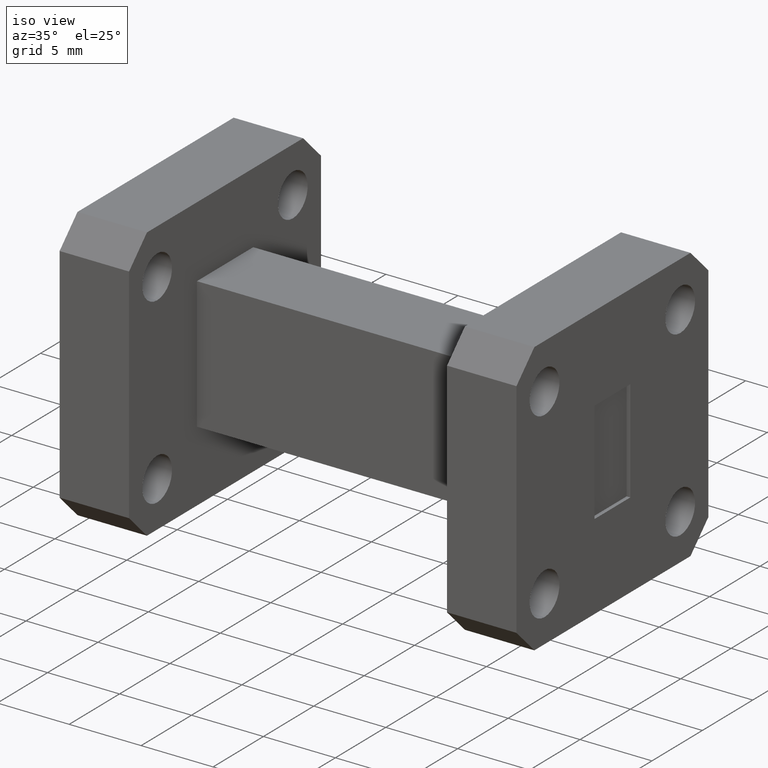
[diagram: clean part render]
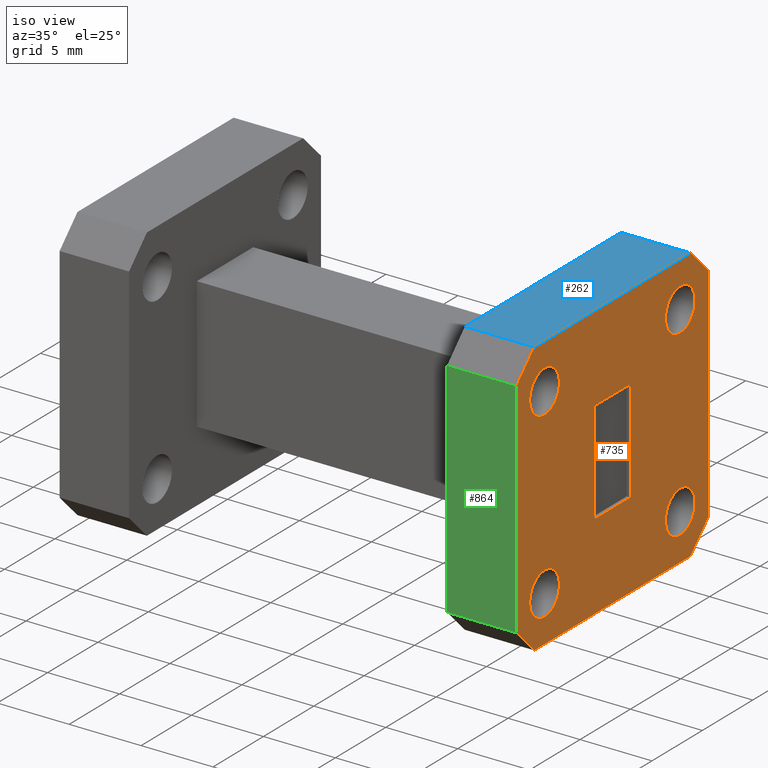
[diagram: same view with three faces highlighted in distinct colors, each labeled with its STEP entity id]
A machine part, iso view with three faces highlighted in distinct colors.
Their STEP definitions:

[orange] entity #735 — the highlighted planar face has unit normal (-1, 0, 0).
#16 = CARTESIAN_POINT ( 'NONE',  ( 1.250000000000000000, -0.3749999999999998890, -0.3049999999999999378 ) ) ;
#24 = CARTESIAN_POINT ( 'NONE',  ( 1.250000000000000000, 0.3750000000000001110, -0.3050000000000000488 ) ) ;
#28 = DIRECTION ( 'NONE',  ( 0.000000000000000000, 0.000000000000000000, 1.000000000000000000 ) ) ;
#44 = EDGE_CURVE ( 'NONE', #1564, #716, #1112, .T. ) ;
#50 = CARTESIAN_POINT ( 'NONE',  ( 1.250000000000000000, -0.3749999999999998890, -0.3049999999999999378 ) ) ;
#55 = EDGE_CURVE ( 'NONE', #565, #1173, #736, .T. ) ;
#57 = CARTESIAN_POINT ( 'NONE',  ( 1.250000000000000000, -0.3750000000000001110, 0.3050000000000001044 ) ) ;
#65 = DIRECTION ( 'NONE',  ( -1.000000000000000000, -0.000000000000000000, -0.000000000000000000 ) ) ;
#73 = DIRECTION ( 'NONE',  ( -0.000000000000000000, 1.219574997171546080E-16, -1.000000000000000000 ) ) ;
#80 = ORIENTED_EDGE ( 'NONE', *, *, #990, .T. ) ;
#101 = FACE_BOUND ( 'NONE', #893, .T. ) ;
#110 = VERTEX_POINT ( 'NONE', #288 ) ;
#119 = EDGE_CURVE ( 'NONE', #1186, #831, #1135, .T. ) ;
#121 = VERTEX_POINT ( 'NONE', #787 ) ;
#139 = EDGE_CURVE ( 'NONE', #1306, #502, #1485, .T. ) ;
#157 = VERTEX_POINT ( 'NONE', #416 ) ;
#160 = ORIENTED_EDGE ( 'NONE', *, *, #181, .T. ) ;
#169 = DIRECTION ( 'NONE',  ( -1.000000000000000000, -0.000000000000000000, -0.000000000000000000 ) ) ;
#174 = CARTESIAN_POINT ( 'NONE',  ( 1.250000000000000000, -0.3049999999999999378, -0.3750000000000000555 ) ) ;
#178 = DIRECTION ( 'NONE',  ( -0.000000000000000000, 0.7071067811865495711, 0.7071067811865454633 ) ) ;
#181 = EDGE_CURVE ( 'NONE', #900, #466, #250, .T. ) ;
#186 = VECTOR ( 'NONE', #919, 39.37007874015748143 ) ;
#187 = LINE ( 'NONE', #431, #1058 ) ;
#204 = CARTESIAN_POINT ( 'NONE',  ( 1.250000000000000000, -0.2649999999999999023, 0.3079999999999997740 ) ) ;
#230 = EDGE_LOOP ( 'NONE', ( #316, #359, #160, #450, #1420, #767, #884, #666 ) ) ;
#250 = LINE ( 'NONE', #16, #186 ) ;
#252 = ORIENTED_EDGE ( 'NONE', *, *, #808, .T. ) ;
#288 = CARTESIAN_POINT ( 'NONE',  ( 1.250000000000000000, 0.3049999999999997713, -0.3749999999999999445 ) ) ;
#298 = VECTOR ( 'NONE', #1661, 39.37007874015748143 ) ;
#302 = ORIENTED_EDGE ( 'NONE', *, *, #139, .T. ) ;
#305 = ORIENTED_EDGE ( 'NONE', *, *, #358, .T. ) ;
#316 = ORIENTED_EDGE ( 'NONE', *, *, #371, .T. ) ;
#358 = EDGE_CURVE ( 'NONE', #502, #1306, #1459, .T. ) ;
#359 = ORIENTED_EDGE ( 'NONE', *, *, #1079, .T. ) ;
#363 = CARTESIAN_POINT ( 'NONE',  ( 1.250000000000000000, 0.3049999999999998823, 0.3750000000000001110 ) ) ;
#371 = EDGE_CURVE ( 'NONE', #1317, #157, #421, .T. ) ;
#372 = EDGE_LOOP ( 'NONE', ( #784, #494, #1048, #1023 ) ) ;
#373 = LINE ( 'NONE', #616, #1606 ) ;
#416 = CARTESIAN_POINT ( 'NONE',  ( 1.250000000000000000, -0.3049999999999998268, 0.3750000000000000555 ) ) ;
#421 = LINE ( 'NONE', #542, #497 ) ;
#431 = CARTESIAN_POINT ( 'NONE',  ( 1.250000000000000000, -0.06999999999999996503, -0.1399999999999999856 ) ) ;
#441 = LINE ( 'NONE', #1460, #1569 ) ;
#450 = ORIENTED_EDGE ( 'NONE', *, *, #517, .T. ) ;
#454 = ORIENTED_EDGE ( 'NONE', *, *, #465, .T. ) ;
#464 = CARTESIAN_POINT ( 'NONE',  ( 1.250000000000000000, 0.3049999999999998823, 0.3750000000000001110 ) ) ;
#465 = EDGE_CURVE ( 'NONE', #1173, #565, #1646, .T. ) ;
#466 = VERTEX_POINT ( 'NONE', #50 ) ;
#468 = PLANE ( 'NONE',  #896 ) ;
#474 = CARTESIAN_POINT ( 'NONE',  ( 1.250000000000000000, 0.07000000000000000666, 0.1400000000000000411 ) ) ;
#494 = ORIENTED_EDGE ( 'NONE', *, *, #44, .F. ) ;
#497 = VECTOR ( 'NONE', #1015, 39.37007874015748143 ) ;
#500 = EDGE_CURVE ( 'NONE', #716, #635, #1589, .T. ) ;
#502 = VERTEX_POINT ( 'NONE', #948 ) ;
#517 = EDGE_CURVE ( 'NONE', #466, #1010, #441, .T. ) ;
#542 = CARTESIAN_POINT ( 'NONE',  ( 1.250000000000000000, -0.3049999999999998268, 0.3750000000000000555 ) ) ;
#565 = VERTEX_POINT ( 'NONE', #683 ) ;
#575 = CARTESIAN_POINT ( 'NONE',  ( 1.250000000000000000, 0.2650000000000002354, 0.2500000000000000000 ) ) ;
#578 = EDGE_CURVE ( 'NONE', #635, #1013, #187, .T. ) ;
#579 = VECTOR ( 'NONE', #932, 39.37007874015748143 ) ;
#581 = AXIS2_PLACEMENT_3D ( 'NONE', #1174, #758, #1262 ) ;
#608 = CARTESIAN_POINT ( 'NONE',  ( 1.250000000000000000, -0.06999999999999996503, -0.1399999999999999856 ) ) ;
#616 = CARTESIAN_POINT ( 'NONE',  ( 1.250000000000000000, 0.3049999999999997713, -0.3749999999999999445 ) ) ;
#635 = VERTEX_POINT ( 'NONE', #848 ) ;
#665 = CARTESIAN_POINT ( 'NONE',  ( 1.250000000000000000, 0.3750000000000001110, 0.3049999999999997713 ) ) ;
#666 = ORIENTED_EDGE ( 'NONE', *, *, #1480, .T. ) ;
#683 = CARTESIAN_POINT ( 'NONE',  ( 1.250000000000000000, 0.2650000000000002354, 0.3079999999999997184 ) ) ;
#687 = AXIS2_PLACEMENT_3D ( 'NONE', #761, #1176, #1656 ) ;
#698 = CARTESIAN_POINT ( 'NONE',  ( 1.250000000000000000, -0.2649999999999997913, -0.2500000000000000000 ) ) ;
#701 = LINE ( 'NONE', #968, #1205 ) ;
#716 = VERTEX_POINT ( 'NONE', #474 ) ;
#726 = ORIENTED_EDGE ( 'NONE', *, *, #807, .T. ) ;
#735 = ADVANCED_FACE ( 'NONE', ( #1227, #101, #1626, #987, #1241, #1612 ), #468, .F. ) ;
#736 = CIRCLE ( 'NONE', #1383, 0.05799999999999969763 ) ;
#742 = DIRECTION ( 'NONE',  ( -1.000000000000000000, -0.000000000000000000, -0.000000000000000000 ) ) ;
#753 = LINE ( 'NONE', #363, #1581 ) ;
#758 = DIRECTION ( 'NONE',  ( -1.000000000000000000, -0.000000000000000000, -0.000000000000000000 ) ) ;
#761 = CARTESIAN_POINT ( 'NONE',  ( 1.250000000000000000, -0.2649999999999999023, 0.2500000000000000555 ) ) ;
#767 = ORIENTED_EDGE ( 'NONE', *, *, #1350, .T. ) ;
#778 = DIRECTION ( 'NONE',  ( -1.000000000000000000, -0.000000000000000000, -0.000000000000000000 ) ) ;
#784 = ORIENTED_EDGE ( 'NONE', *, *, #500, .F. ) ;
#787 = CARTESIAN_POINT ( 'NONE',  ( 1.250000000000000000, -0.2649999999999997913, -0.3079999999999997184 ) ) ;
#793 = EDGE_LOOP ( 'NONE', ( #252, #933 ) ) ;
#799 = DIRECTION ( 'NONE',  ( 0.000000000000000000, 0.000000000000000000, 1.000000000000000000 ) ) ;
#807 = EDGE_CURVE ( 'NONE', #121, #1004, #1001, .T. ) ;
#808 = EDGE_CURVE ( 'NONE', #1055, #1503, #978, .T. ) ;
#831 = VERTEX_POINT ( 'NONE', #665 ) ;
#848 = CARTESIAN_POINT ( 'NONE',  ( 1.250000000000000000, -0.06999999999999999278, 0.1400000000000000411 ) ) ;
#861 = CARTESIAN_POINT ( 'NONE',  ( 1.250000000000000000, 0.000000000000000000, 0.000000000000000000 ) ) ;
#870 = DIRECTION ( 'NONE',  ( -0.000000000000000000, -0.7071067811865467956, 0.7071067811865482389 ) ) ;
#871 = DIRECTION ( 'NONE',  ( -0.000000000000000000, -0.7071067811865493491, -0.7071067811865455743 ) ) ;
#875 = VECTOR ( 'NONE', #1402, 39.37007874015748143 ) ;
#884 = ORIENTED_EDGE ( 'NONE', *, *, #119, .T. ) ;
#893 = EDGE_LOOP ( 'NONE', ( #1149, #454 ) ) ;
#896 = AXIS2_PLACEMENT_3D ( 'NONE', #861, #1375, #1251 ) ;
#900 = VERTEX_POINT ( 'NONE', #57 ) ;
#919 = DIRECTION ( 'NONE',  ( -0.000000000000000000, 3.358829500406881718E-16, -1.000000000000000000 ) ) ;
#932 = DIRECTION ( 'NONE',  ( -0.000000000000000000, -1.000000000000000000, -0.000000000000000000 ) ) ;
#933 = ORIENTED_EDGE ( 'NONE', *, *, #971, .T. ) ;
#938 = LINE ( 'NONE', #1451, #875 ) ;
#948 = CARTESIAN_POINT ( 'NONE',  ( 1.250000000000000000, -0.2649999999999999023, 0.1920000000000003093 ) ) ;
#950 = EDGE_LOOP ( 'NONE', ( #302, #305 ) ) ;
#968 = CARTESIAN_POINT ( 'NONE',  ( 1.250000000000000000, 0.3750000000000001110, -0.3050000000000000488 ) ) ;
#971 = EDGE_CURVE ( 'NONE', #1503, #1055, #1167, .T. ) ;
#978 = CIRCLE ( 'NONE', #581, 0.05799999999999969763 ) ;
#987 = FACE_BOUND ( 'NONE', #1510, .T. ) ;
#990 = EDGE_CURVE ( 'NONE', #1004, #121, #1571, .T. ) ;
#1001 = CIRCLE ( 'NONE', #1436, 0.05799999999999973233 ) ;
#1004 = VERTEX_POINT ( 'NONE', #1351 ) ;
#1007 = CARTESIAN_POINT ( 'NONE',  ( 1.250000000000000000, -0.3750000000000001110, 0.3050000000000001044 ) ) ;
#1010 = VERTEX_POINT ( 'NONE', #174 ) ;
#1011 = EDGE_CURVE ( 'NONE', #1013, #1564, #938, .T. ) ;
#1013 = VERTEX_POINT ( 'NONE', #608 ) ;
#1014 = EDGE_CURVE ( 'NONE', #1010, #110, #373, .T. ) ;
#1015 = DIRECTION ( 'NONE',  ( -0.000000000000000000, -1.000000000000000000, -1.119609833468960901E-16 ) ) ;
#1017 = DIRECTION ( 'NONE',  ( -0.000000000000000000, 1.000000000000000000, 1.119609833468960901E-16 ) ) ;
#1023 = ORIENTED_EDGE ( 'NONE', *, *, #578, .F. ) ;
#1048 = ORIENTED_EDGE ( 'NONE', *, *, #1011, .F. ) ;
#1055 = VERTEX_POINT ( 'NONE', #1639 ) ;
#1058 = VECTOR ( 'NONE', #73, 39.37007874015748143 ) ;
#1070 = DIRECTION ( 'NONE',  ( 0.000000000000000000, 0.000000000000000000, 1.000000000000000000 ) ) ;
#1073 = VECTOR ( 'NONE', #871, 39.37007874015748854 ) ;
#1079 = EDGE_CURVE ( 'NONE', #157, #900, #1509, .T. ) ;
#1087 = CARTESIAN_POINT ( 'NONE',  ( 1.250000000000000000, -0.06999999999999999278, 0.1400000000000000411 ) ) ;
#1091 = AXIS2_PLACEMENT_3D ( 'NONE', #1570, #1435, #799 ) ;
#1093 = AXIS2_PLACEMENT_3D ( 'NONE', #1397, #778, #1172 ) ;
#1112 = LINE ( 'NONE', #1624, #1360 ) ;
#1129 = CARTESIAN_POINT ( 'NONE',  ( 1.250000000000000000, 0.2650000000000002354, 0.2500000000000000000 ) ) ;
#1135 = LINE ( 'NONE', #1282, #298 ) ;
#1149 = ORIENTED_EDGE ( 'NONE', *, *, #55, .T. ) ;
#1167 = CIRCLE ( 'NONE', #1091, 0.05799999999999969763 ) ;
#1172 = DIRECTION ( 'NONE',  ( 0.000000000000000000, 0.000000000000000000, 1.000000000000000000 ) ) ;
#1173 = VERTEX_POINT ( 'NONE', #1544 ) ;
#1174 = CARTESIAN_POINT ( 'NONE',  ( 1.250000000000000000, 0.2650000000000002354, -0.2500000000000000000 ) ) ;
#1176 = DIRECTION ( 'NONE',  ( -1.000000000000000000, -0.000000000000000000, -0.000000000000000000 ) ) ;
#1186 = VERTEX_POINT ( 'NONE', #24 ) ;
#1205 = VECTOR ( 'NONE', #178, 39.37007874015748854 ) ;
#1227 = FACE_BOUND ( 'NONE', #793, .T. ) ;
#1241 = FACE_OUTER_BOUND ( 'NONE', #230, .T. ) ;
#1247 = DIRECTION ( 'NONE',  ( 0.000000000000000000, 0.000000000000000000, 1.000000000000000000 ) ) ;
#1251 = DIRECTION ( 'NONE',  ( 0.000000000000000000, 0.000000000000000000, 1.000000000000000000 ) ) ;
#1262 = DIRECTION ( 'NONE',  ( 0.000000000000000000, 0.000000000000000000, 1.000000000000000000 ) ) ;
#1273 = DIRECTION ( 'NONE',  ( -1.000000000000000000, -0.000000000000000000, -0.000000000000000000 ) ) ;
#1282 = CARTESIAN_POINT ( 'NONE',  ( 1.250000000000000000, 0.3750000000000001110, 0.3049999999999997713 ) ) ;
#1306 = VERTEX_POINT ( 'NONE', #204 ) ;
#1307 = AXIS2_PLACEMENT_3D ( 'NONE', #575, #169, #1070 ) ;
#1317 = VERTEX_POINT ( 'NONE', #464 ) ;
#1319 = DIRECTION ( 'NONE',  ( 0.000000000000000000, 0.000000000000000000, 1.000000000000000000 ) ) ;
#1322 = AXIS2_PLACEMENT_3D ( 'NONE', #698, #65, #1319 ) ;
#1350 = EDGE_CURVE ( 'NONE', #110, #1186, #701, .T. ) ;
#1351 = CARTESIAN_POINT ( 'NONE',  ( 1.250000000000000000, -0.2649999999999997913, -0.1920000000000002538 ) ) ;
#1360 = VECTOR ( 'NONE', #1495, 39.37007874015748143 ) ;
#1364 = CARTESIAN_POINT ( 'NONE',  ( 1.250000000000000000, 0.07000000000000006217, -0.1399999999999999856 ) ) ;
#1375 = DIRECTION ( 'NONE',  ( -1.000000000000000000, 0.000000000000000000, 0.000000000000000000 ) ) ;
#1377 = CARTESIAN_POINT ( 'NONE',  ( 1.250000000000000000, 0.2650000000000002354, -0.3079999999999997184 ) ) ;
#1383 = AXIS2_PLACEMENT_3D ( 'NONE', #1129, #742, #1247 ) ;
#1397 = CARTESIAN_POINT ( 'NONE',  ( 1.250000000000000000, -0.2649999999999999023, 0.2500000000000000555 ) ) ;
#1402 = DIRECTION ( 'NONE',  ( 0.000000000000000000, 1.000000000000000000, 0.000000000000000000 ) ) ;
#1408 = CARTESIAN_POINT ( 'NONE',  ( 1.250000000000000000, -0.2649999999999997913, -0.2500000000000000000 ) ) ;
#1420 = ORIENTED_EDGE ( 'NONE', *, *, #1014, .T. ) ;
#1435 = DIRECTION ( 'NONE',  ( -1.000000000000000000, -0.000000000000000000, -0.000000000000000000 ) ) ;
#1436 = AXIS2_PLACEMENT_3D ( 'NONE', #1408, #1273, #28 ) ;
#1451 = CARTESIAN_POINT ( 'NONE',  ( 1.250000000000000000, -0.06999999999999996503, -0.1399999999999999856 ) ) ;
#1459 = CIRCLE ( 'NONE', #687, 0.05799999999999973233 ) ;
#1460 = CARTESIAN_POINT ( 'NONE',  ( 1.250000000000000000, -0.3049999999999999378, -0.3750000000000000555 ) ) ;
#1480 = EDGE_CURVE ( 'NONE', #831, #1317, #753, .T. ) ;
#1485 = CIRCLE ( 'NONE', #1093, 0.05799999999999973233 ) ;
#1495 = DIRECTION ( 'NONE',  ( 0.000000000000000000, -1.829362495757319243E-16, 1.000000000000000000 ) ) ;
#1503 = VERTEX_POINT ( 'NONE', #1377 ) ;
#1509 = LINE ( 'NONE', #1007, #1073 ) ;
#1510 = EDGE_LOOP ( 'NONE', ( #80, #726 ) ) ;
#1544 = CARTESIAN_POINT ( 'NONE',  ( 1.250000000000000000, 0.2650000000000002354, 0.1920000000000003093 ) ) ;
#1564 = VERTEX_POINT ( 'NONE', #1364 ) ;
#1569 = VECTOR ( 'NONE', #1598, 39.37007874015748143 ) ;
#1570 = CARTESIAN_POINT ( 'NONE',  ( 1.250000000000000000, 0.2650000000000002354, -0.2500000000000000000 ) ) ;
#1571 = CIRCLE ( 'NONE', #1322, 0.05799999999999973233 ) ;
#1581 = VECTOR ( 'NONE', #870, 39.37007874015748143 ) ;
#1589 = LINE ( 'NONE', #1087, #579 ) ;
#1598 = DIRECTION ( 'NONE',  ( -0.000000000000000000, 0.7071067811865469066, -0.7071067811865482389 ) ) ;
#1606 = VECTOR ( 'NONE', #1017, 39.37007874015748143 ) ;
#1612 = FACE_BOUND ( 'NONE', #372, .T. ) ;
#1624 = CARTESIAN_POINT ( 'NONE',  ( 1.250000000000000000, 0.07000000000000006217, -0.1399999999999999856 ) ) ;
#1626 = FACE_BOUND ( 'NONE', #950, .T. ) ;
#1639 = CARTESIAN_POINT ( 'NONE',  ( 1.250000000000000000, 0.2650000000000002354, -0.1920000000000003093 ) ) ;
#1646 = CIRCLE ( 'NONE', #1307, 0.05799999999999969763 ) ;
#1656 = DIRECTION ( 'NONE',  ( 0.000000000000000000, 0.000000000000000000, 1.000000000000000000 ) ) ;
#1661 = DIRECTION ( 'NONE',  ( -0.000000000000000000, -0.000000000000000000, 1.000000000000000000 ) ) ;

[blue] entity #262 — the highlighted planar face has unit normal (0, 0, -1).
#157 = VERTEX_POINT ( 'NONE', #416 ) ;
#166 = ORIENTED_EDGE ( 'NONE', *, *, #371, .F. ) ;
#237 = CARTESIAN_POINT ( 'NONE',  ( 1.250000000000000000, 0.3049999999999998823, 0.3750000000000001110 ) ) ;
#262 = ADVANCED_FACE ( 'NONE', ( #821 ), #324, .F. ) ;
#310 = DIRECTION ( 'NONE',  ( -1.000000000000000000, -0.000000000000000000, -0.000000000000000000 ) ) ;
#324 = PLANE ( 'NONE',  #348 ) ;
#337 = LINE ( 'NONE', #1340, #1446 ) ;
#346 = VECTOR ( 'NONE', #310, 39.37007874015748143 ) ;
#348 = AXIS2_PLACEMENT_3D ( 'NONE', #936, #556, #673 ) ;
#350 = EDGE_LOOP ( 'NONE', ( #1489, #1279, #166, #1575 ) ) ;
#371 = EDGE_CURVE ( 'NONE', #1317, #157, #421, .T. ) ;
#416 = CARTESIAN_POINT ( 'NONE',  ( 1.250000000000000000, -0.3049999999999998268, 0.3750000000000000555 ) ) ;
#421 = LINE ( 'NONE', #542, #497 ) ;
#464 = CARTESIAN_POINT ( 'NONE',  ( 1.250000000000000000, 0.3049999999999998823, 0.3750000000000001110 ) ) ;
#497 = VECTOR ( 'NONE', #1015, 39.37007874015748143 ) ;
#542 = CARTESIAN_POINT ( 'NONE',  ( 1.250000000000000000, -0.3049999999999998268, 0.3750000000000000555 ) ) ;
#552 = CARTESIAN_POINT ( 'NONE',  ( 1.250000000000000000, -0.3049999999999998268, 0.3750000000000000555 ) ) ;
#556 = DIRECTION ( 'NONE',  ( 0.000000000000000000, 1.119609833468960901E-16, -1.000000000000000000 ) ) ;
#596 = EDGE_CURVE ( 'NONE', #157, #1335, #1445, .T. ) ;
#621 = LINE ( 'NONE', #237, #1286 ) ;
#673 = DIRECTION ( 'NONE',  ( 0.000000000000000000, 1.000000000000000000, 1.119609833468960901E-16 ) ) ;
#821 = FACE_OUTER_BOUND ( 'NONE', #350, .T. ) ;
#936 = CARTESIAN_POINT ( 'NONE',  ( 1.250000000000000000, -0.3049999999999998268, 0.3750000000000000555 ) ) ;
#944 = DIRECTION ( 'NONE',  ( -0.000000000000000000, -1.000000000000000000, -1.119609833468960901E-16 ) ) ;
#964 = CARTESIAN_POINT ( 'NONE',  ( 1.060000000000000053, 0.3049999999999998823, 0.3750000000000001110 ) ) ;
#1015 = DIRECTION ( 'NONE',  ( -0.000000000000000000, -1.000000000000000000, -1.119609833468960901E-16 ) ) ;
#1082 = CARTESIAN_POINT ( 'NONE',  ( 1.060000000000000053, -0.3049999999999998268, 0.3750000000000000555 ) ) ;
#1109 = VERTEX_POINT ( 'NONE', #964 ) ;
#1279 = ORIENTED_EDGE ( 'NONE', *, *, #596, .F. ) ;
#1286 = VECTOR ( 'NONE', #1629, 39.37007874015748143 ) ;
#1296 = EDGE_CURVE ( 'NONE', #1109, #1335, #337, .T. ) ;
#1317 = VERTEX_POINT ( 'NONE', #464 ) ;
#1335 = VERTEX_POINT ( 'NONE', #1082 ) ;
#1340 = CARTESIAN_POINT ( 'NONE',  ( 1.060000000000000053, -0.3049999999999998268, 0.3750000000000000555 ) ) ;
#1445 = LINE ( 'NONE', #552, #346 ) ;
#1446 = VECTOR ( 'NONE', #944, 39.37007874015748143 ) ;
#1484 = EDGE_CURVE ( 'NONE', #1317, #1109, #621, .T. ) ;
#1489 = ORIENTED_EDGE ( 'NONE', *, *, #1296, .T. ) ;
#1575 = ORIENTED_EDGE ( 'NONE', *, *, #1484, .T. ) ;
#1629 = DIRECTION ( 'NONE',  ( -1.000000000000000000, -0.000000000000000000, -0.000000000000000000 ) ) ;

[green] entity #864 — the highlighted planar face has unit normal (-0, 1, 0).
#16 = CARTESIAN_POINT ( 'NONE',  ( 1.250000000000000000, -0.3749999999999998890, -0.3049999999999999378 ) ) ;
#47 = ORIENTED_EDGE ( 'NONE', *, *, #956, .T. ) ;
#50 = CARTESIAN_POINT ( 'NONE',  ( 1.250000000000000000, -0.3749999999999998890, -0.3049999999999999378 ) ) ;
#57 = CARTESIAN_POINT ( 'NONE',  ( 1.250000000000000000, -0.3750000000000001110, 0.3050000000000001044 ) ) ;
#70 = EDGE_CURVE ( 'NONE', #466, #1636, #1641, .T. ) ;
#96 = VECTOR ( 'NONE', #1577, 39.37007874015748143 ) ;
#181 = EDGE_CURVE ( 'NONE', #900, #466, #250, .T. ) ;
#183 = CARTESIAN_POINT ( 'NONE',  ( 1.250000000000000000, -0.3749999999999998890, -0.3049999999999999378 ) ) ;
#186 = VECTOR ( 'NONE', #919, 39.37007874015748143 ) ;
#200 = DIRECTION ( 'NONE',  ( -0.000000000000000000, 1.000000000000000000, 3.358829500406881225E-16 ) ) ;
#238 = VECTOR ( 'NONE', #1479, 39.37007874015748143 ) ;
#250 = LINE ( 'NONE', #16, #186 ) ;
#277 = EDGE_CURVE ( 'NONE', #900, #1321, #1064, .T. ) ;
#286 = CARTESIAN_POINT ( 'NONE',  ( 1.060000000000000053, -0.3749999999999998890, -0.3049999999999999378 ) ) ;
#419 = DIRECTION ( 'NONE',  ( -0.000000000000000000, 3.358829500406881718E-16, -1.000000000000000000 ) ) ;
#466 = VERTEX_POINT ( 'NONE', #50 ) ;
#469 = CARTESIAN_POINT ( 'NONE',  ( 1.060000000000000053, -0.3750000000000001110, 0.3050000000000001044 ) ) ;
#504 = FACE_OUTER_BOUND ( 'NONE', #1478, .T. ) ;
#603 = AXIS2_PLACEMENT_3D ( 'NONE', #183, #200, #1181 ) ;
#610 = CARTESIAN_POINT ( 'NONE',  ( 1.250000000000000000, -0.3749999999999998890, -0.3049999999999999378 ) ) ;
#864 = ADVANCED_FACE ( 'NONE', ( #504 ), #1012, .F. ) ;
#880 = ORIENTED_EDGE ( 'NONE', *, *, #70, .F. ) ;
#900 = VERTEX_POINT ( 'NONE', #57 ) ;
#919 = DIRECTION ( 'NONE',  ( -0.000000000000000000, 3.358829500406881718E-16, -1.000000000000000000 ) ) ;
#956 = EDGE_CURVE ( 'NONE', #1321, #1636, #1200, .T. ) ;
#1012 = PLANE ( 'NONE',  #603 ) ;
#1040 = ORIENTED_EDGE ( 'NONE', *, *, #277, .T. ) ;
#1064 = LINE ( 'NONE', #1327, #96 ) ;
#1078 = CARTESIAN_POINT ( 'NONE',  ( 1.060000000000000053, -0.3749999999999998890, -0.3049999999999999378 ) ) ;
#1181 = DIRECTION ( 'NONE',  ( 0.000000000000000000, -3.358829500406881225E-16, 1.000000000000000000 ) ) ;
#1200 = LINE ( 'NONE', #1078, #1621 ) ;
#1321 = VERTEX_POINT ( 'NONE', #469 ) ;
#1327 = CARTESIAN_POINT ( 'NONE',  ( 1.250000000000000000, -0.3750000000000001110, 0.3050000000000001044 ) ) ;
#1470 = ORIENTED_EDGE ( 'NONE', *, *, #181, .F. ) ;
#1478 = EDGE_LOOP ( 'NONE', ( #47, #880, #1470, #1040 ) ) ;
#1479 = DIRECTION ( 'NONE',  ( -1.000000000000000000, -0.000000000000000000, -0.000000000000000000 ) ) ;
#1577 = DIRECTION ( 'NONE',  ( -1.000000000000000000, -0.000000000000000000, -0.000000000000000000 ) ) ;
#1621 = VECTOR ( 'NONE', #419, 39.37007874015748143 ) ;
#1636 = VERTEX_POINT ( 'NONE', #286 ) ;
#1641 = LINE ( 'NONE', #610, #238 ) ;